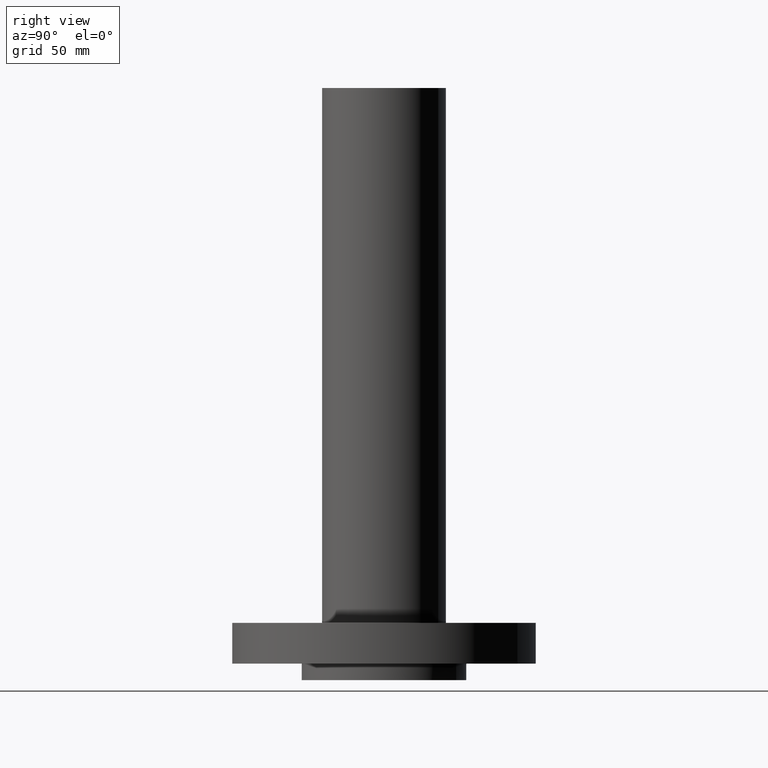
[diagram: clean part render]
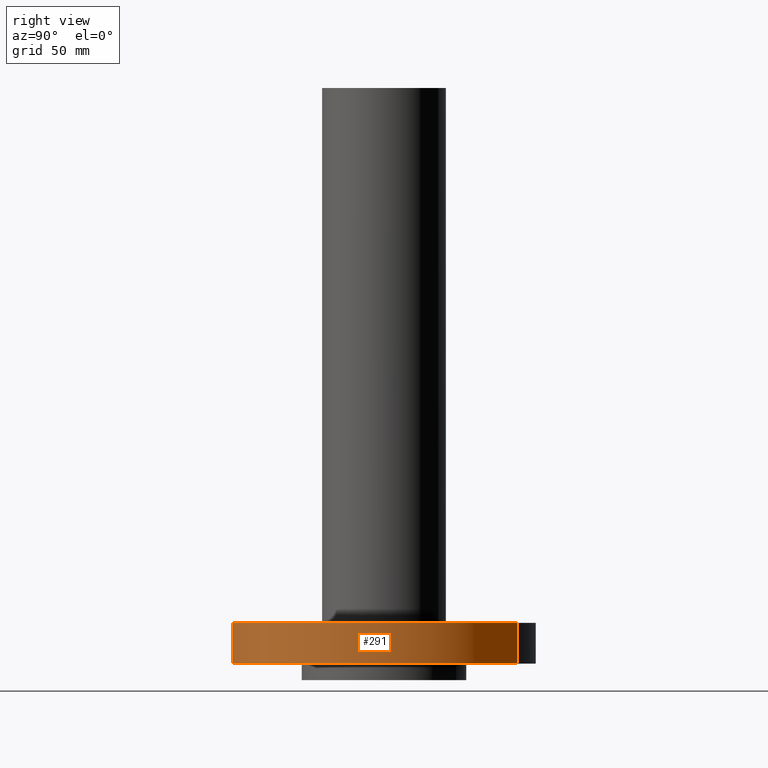
[diagram: same view with one face highlighted and labeled with its STEP entity id]
A machine part, right view. The second image highlights one B-rep face of the part: STEP entity #291.
In plain terms, the highlighted cylindrical surface (partial cylindrical patch) has radius 58.674 mm, axis along (0, 0, -1).
Its self-contained STEP definition (entity closure, byte-faithful):
#91=AXIS2_PLACEMENT_3D('Circle Axis2P3D',#89,#90,$) ;
#252=AXIS2_PLACEMENT_3D('Cylinder Axis2P3D',#249,#250,#251) ;
#282=AXIS2_PLACEMENT_3D('Circle Axis2P3D',#280,#281,$) ;
#84=CARTESIAN_POINT('Vertex',(-1.10747299418,-2.02721571797,-1.1189649382E-015)) ;
#86=CARTESIAN_POINT('Vertex',(1.10747299418,2.02721571797,-1.1189649382E-015)) ;
#89=CARTESIAN_POINT('Axis2P3D Location',(0.,0.,0.)) ;
#249=CARTESIAN_POINT('Axis2P3D Location',(0.,0.,4.25000000002)) ;
#254=CARTESIAN_POINT('Line Origine',(-1.10747299418,-2.02721571797,0.310000000001)) ;
#258=CARTESIAN_POINT('Vertex',(-1.10747299418,-2.02721571797,0.620000000002)) ;
#265=CARTESIAN_POINT('Vertex',(1.10747299418,2.02721571797,0.620000000002)) ;
#268=CARTESIAN_POINT('Line Origine',(1.10747299418,2.02721571797,0.310000000001)) ;
#280=CARTESIAN_POINT('Axis2P3D Location',(0.,0.,0.620000000002)) ;
#90=DIRECTION('Axis2P3D Direction',(0.,0.,-0.0393700787402)) ;
#250=DIRECTION('Axis2P3D Direction',(0.,0.,-0.0393700787402)) ;
#251=DIRECTION('Axis2P3D XDirection',(0.0188750212049,0.0345504945626,0.)) ;
#255=DIRECTION('Vector Direction',(0.,0.,-0.0393700787402)) ;
#269=DIRECTION('Vector Direction',(0.,0.,-0.0393700787402)) ;
#281=DIRECTION('Axis2P3D Direction',(0.,0.,-0.0393700787402)) ;
#256=VECTOR('Line Direction',#255,0.0393700787402) ;
#270=VECTOR('Line Direction',#269,0.0393700787402) ;
#286=ORIENTED_EDGE('',*,*,#93,.F.) ;
#287=ORIENTED_EDGE('',*,*,#272,.T.) ;
#288=ORIENTED_EDGE('',*,*,#284,.T.) ;
#289=ORIENTED_EDGE('',*,*,#260,.F.) ;
#291=ADVANCED_FACE('PartBody',(#290),#253,.T.) ;
#92=CIRCLE('generated circle',#91,2.31000000001) ;
#283=CIRCLE('generated circle',#282,2.31000000001) ;
#253=CYLINDRICAL_SURFACE('generated cylinder',#252,2.31000000001) ;
#93=EDGE_CURVE('',#87,#85,#92,.T.) ;
#260=EDGE_CURVE('',#85,#259,#257,.F.) ;
#272=EDGE_CURVE('',#87,#266,#271,.F.) ;
#284=EDGE_CURVE('',#266,#259,#283,.T.) ;
#285=EDGE_LOOP('',(#286,#287,#288,#289)) ;
#290=FACE_OUTER_BOUND('',#285,.T.) ;
#257=LINE('Line',#254,#256) ;
#271=LINE('Line',#268,#270) ;
#85=VERTEX_POINT('',#84) ;
#87=VERTEX_POINT('',#86) ;
#259=VERTEX_POINT('',#258) ;
#266=VERTEX_POINT('',#265) ;